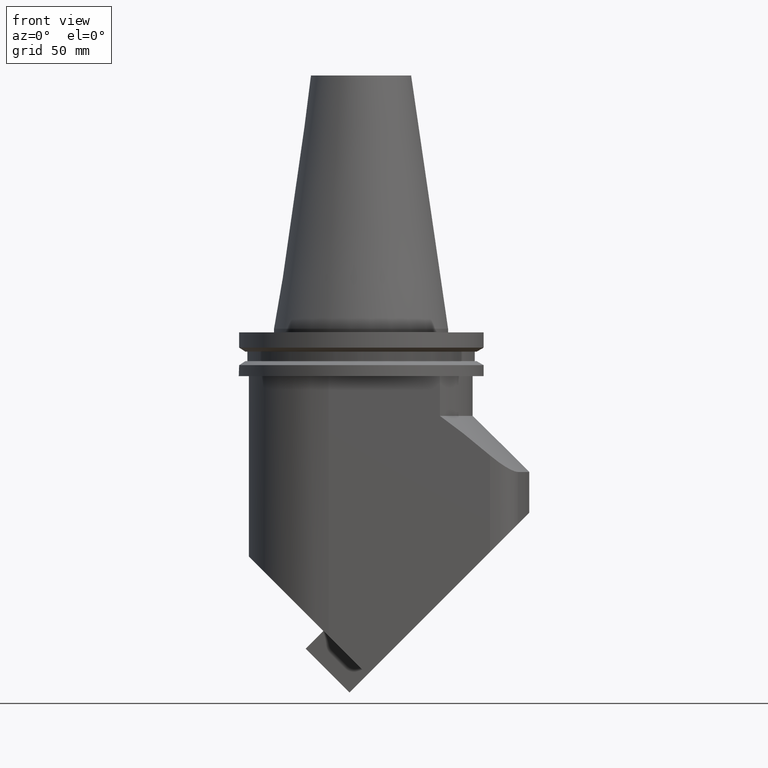
[diagram: clean part render]
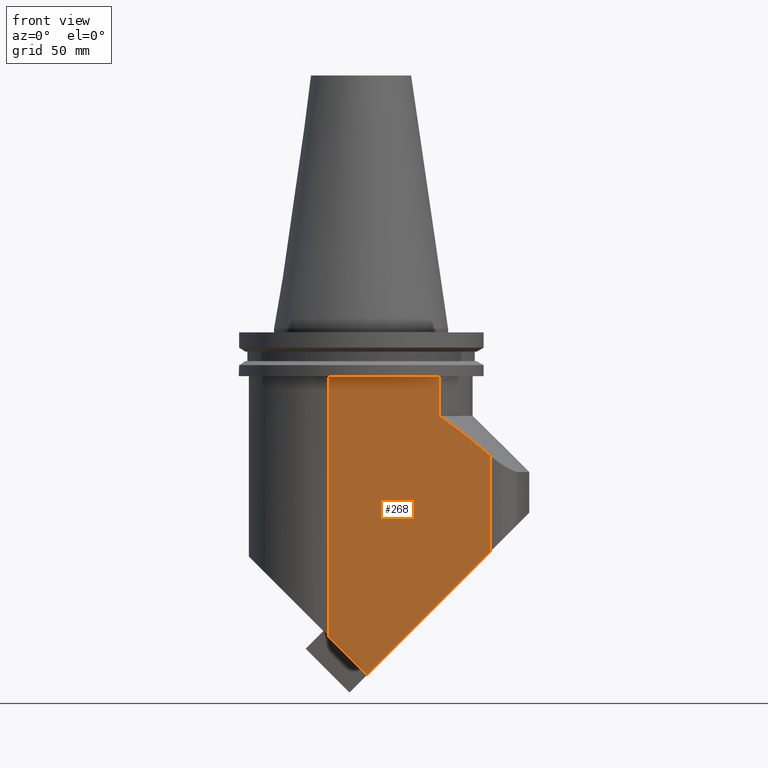
[diagram: same view with one face highlighted and labeled with its STEP entity id]
A machine part, front view. The second image highlights one B-rep face of the part: STEP entity #268.
In plain terms, the highlighted planar face has unit normal (0, 1, -0).
Its self-contained STEP definition (entity closure, byte-faithful):
#147=EDGE_CURVE('Unnamed[1]',#404,#405,#406,.T.);
#160=EDGE_CURVE('Unnamed[1]',#409,#426,#427,.T.);
#164=EDGE_CURVE('Unnamed[1]',#404,#433,#434,.T.);
#183=EDGE_CURVE('Unnamed[1]',#429,#426,#460,.T.);
#251=EDGE_CURVE('Unnamed[1]',#405,#429,#554,.T.);
#268=ADVANCED_FACE('Unnamed[1]',(#575),#576,.F.);
#284=EDGE_CURVE('Unnamed[1]',#596,#409,#597,.T.);
#286=EDGE_CURVE('Unnamed[1]',#433,#596,#599,.T.);
#404=VERTEX_POINT('',#735);
#405=VERTEX_POINT('',#736);
#406=LINE('',#737,#738);
#409=VERTEX_POINT('',#742);
#426=VERTEX_POINT('',#765);
#427=(B_SPLINE_CURVE(2,(#767,#768,#769),.UNSPECIFIED.,.F.,.F.)B_SPLINE_CURVE_WITH_KNOTS((3,3),(0.0,35.7722103822643),.UNSPECIFIED.)RATIONAL_B_SPLINE_CURVE((1.0,1.0319913093744,1.0))BOUNDED_CURVE()REPRESENTATION_ITEM('')GEOMETRIC_REPRESENTATION_ITEM()CURVE());
#429=VERTEX_POINT('',#778);
#433=VERTEX_POINT('',#783);
#434=LINE('',#784,#785);
#460=LINE('',#821,#822);
#554=LINE('',#1038,#1039);
#575=FACE_OUTER_BOUND('',#1072,.T.);
#576=PLANE('',#1073);
#596=VERTEX_POINT('',#1099);
#597=LINE('',#1100,#1101);
#599=LINE('',#1104,#1105);
#735=CARTESIAN_POINT('',(-13.0000000000001,-32.0,-123.457864382269));
#736=CARTESIAN_POINT('',(2.47106780657833,-32.0,-138.928932193421));
#737=CARTESIAN_POINT('',(44.1181871232674,-32.0000000000001,-180.576051522424));
#738=VECTOR('',#1290,1.0);
#742=CARTESIAN_POINT('',(31.6385840391125,-32.0,-35.0000000000011));
#765=CARTESIAN_POINT('',(51.7711309515274,-32.0,-50.8625500615967));
#767=CARTESIAN_POINT('',(31.6385840391125,-32.0,-35.0000000000011));
#768=CARTESIAN_POINT('',(42.7562444585317,-32.0,-42.8166007444037));
#769=CARTESIAN_POINT('',(59.4327350876602,-32.0,-57.5000000000014));
#778=CARTESIAN_POINT('',(51.7711309515274,-32.0,-89.6288690484723));
#783=CARTESIAN_POINT('',(-13.0000000000001,-31.9999999999999,-19.05));
#784=CARTESIAN_POINT('',(-13.0000000000001,-32.0,-306.209870642012));
#785=VECTOR('',#1312,1.0);
#821=CARTESIAN_POINT('',(51.7711309515274,-32.0000000000001,-306.209870642012));
#822=VECTOR('',#1343,1.0);
#1038=CARTESIAN_POINT('',(-20.6310762915626,-32.0,-162.031076291562));
#1039=VECTOR('',#1426,1.0);
#1072=EDGE_LOOP('',(#1441,#1442,#1443,#1444,#1445,#1446,#1447));
#1073=AXIS2_PLACEMENT_3D('',#1448,#1449,#1450);
#1099=CARTESIAN_POINT('',(31.6385840391123,-32.0,-19.0500000000001));
#1100=CARTESIAN_POINT('',(31.6385840391124,-32.0,-27.0250000000006));
#1101=VECTOR('',#1479,1.0);
#1104=CARTESIAN_POINT('',(51.7711309515274,-32.0,-19.05));
#1105=VECTOR('',#1480,1.0);
#1290=DIRECTION('',(0.707106781082013,-4.71027737581921E-016,-0.707106781291082));
#1312=DIRECTION('',(-1.22464679914735E-016,2.22044604925031E-016,1.0));
#1343=DIRECTION('',(-1.22464679914735E-016,2.22044604925031E-016,1.0));
#1426=DIRECTION('',(0.707106781186548,-1.57009245868378E-016,0.707106781186547));
#1441=ORIENTED_EDGE('',*,*,#147,.T.);
#1442=ORIENTED_EDGE('',*,*,#251,.T.);
#1443=ORIENTED_EDGE('',*,*,#183,.T.);
#1444=ORIENTED_EDGE('',*,*,#160,.F.);
#1445=ORIENTED_EDGE('',*,*,#284,.F.);
#1446=ORIENTED_EDGE('',*,*,#286,.F.);
#1447=ORIENTED_EDGE('',*,*,#164,.F.);
#1448=CARTESIAN_POINT('',(19.3855654757637,-32.0000000000001,-306.209870642012));
#1449=DIRECTION('',(4.44089209850063E-016,1.0,-2.22044604925031E-016));
#1450=DIRECTION('',(-1.0,4.44089209850063E-016,-1.22464679914735E-016));
#1479=DIRECTION('',(-1.04228178922544E-016,-2.22044604925031E-016,-1.0));
#1480=DIRECTION('',(1.0,-4.44089209850063E-016,1.22464679914735E-016));